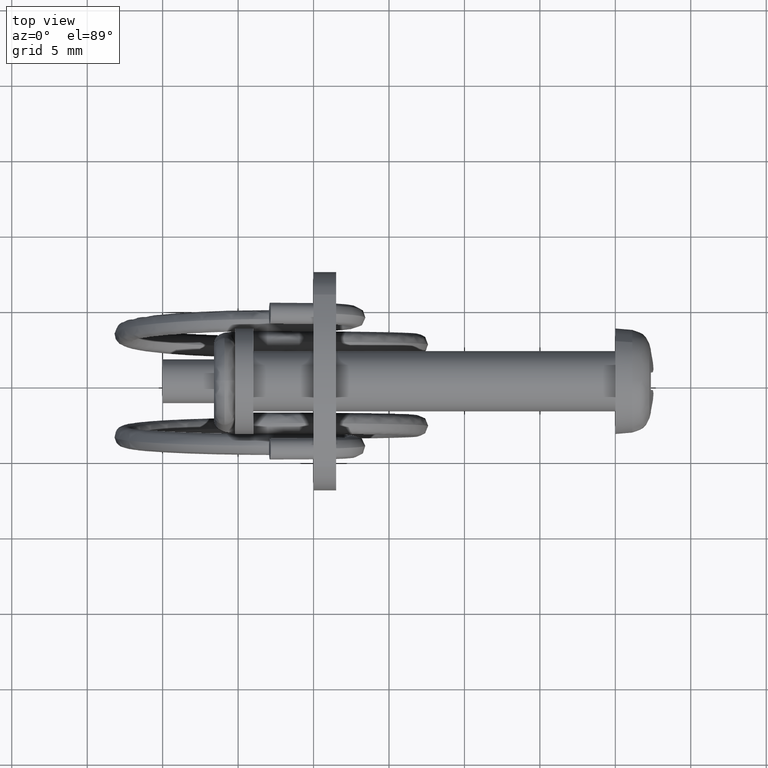
[diagram: clean part render]
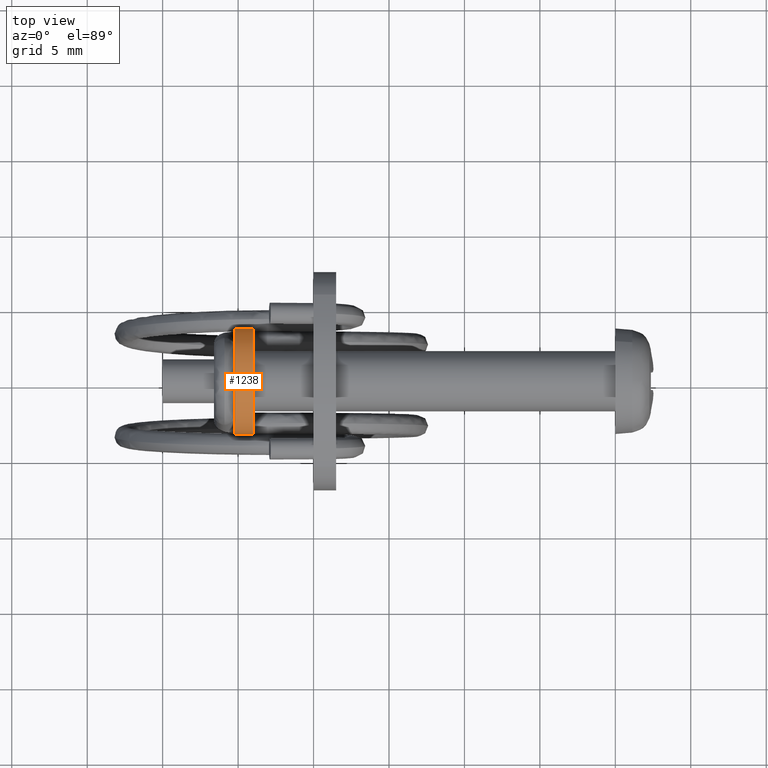
[diagram: same view with one face highlighted and labeled with its STEP entity id]
A machine part, top view. The second image highlights one B-rep face of the part: STEP entity #1238.
In plain terms, the highlighted face is a freeform B-spline surface patch.
Its self-contained STEP definition (entity closure, byte-faithful):
#1044=CARTESIAN_POINT('',(-25.199999999999999,0.0,3.500000000000057));
#1045=VERTEX_POINT('',#1044);
#1046=CARTESIAN_POINT('',(-25.199999999999999,3.493471794474410,0.213669888406786));
#1047=VERTEX_POINT('',#1046);
#1048=CARTESIAN_POINT('',(-25.199999999999999,0.0,3.500000000000057));
#1049=CARTESIAN_POINT('',(-25.200000000000006,3.292471234137140,3.500000000000057));
#1050=CARTESIAN_POINT('',(-25.199999999999999,3.493471794474410,0.213669888406786));
#1058=(BOUNDED_CURVE()B_SPLINE_CURVE(2,(#1048,#1049,#1050),.UNSPECIFIED.,.F.,.U.)B_SPLINE_CURVE_WITH_KNOTS((3,3),(0.0,0.239332962240253),.UNSPECIFIED.)CURVE()GEOMETRIC_REPRESENTATION_ITEM()RATIONAL_B_SPLINE_CURVE((1.0,0.719603993285175,0.976072041669525))REPRESENTATION_ITEM(''));
#1059=EDGE_CURVE('',#1045,#1047,#1058,.T.);
#1078=CARTESIAN_POINT('',(-25.199999999999999,-3.493471794474410,-0.213669888406672));
#1079=VERTEX_POINT('',#1078);
#1093=CARTESIAN_POINT('',(-25.199999999999999,-3.493471794474410,-0.213669888406673));
#1094=CARTESIAN_POINT('',(-25.200000000000003,-3.500000000000000,-0.106934671562418));
#1095=CARTESIAN_POINT('',(-25.199999999999999,-3.500000000000000,5.684342E-014));
#1096=CARTESIAN_POINT('',(-25.200000000000006,-3.500000000000000,3.500000000000056));
#1097=CARTESIAN_POINT('',(-25.199999999999999,0.0,3.500000000000057));
#1105=(BOUNDED_CURVE()B_SPLINE_CURVE(2,(#1093,#1094,#1095,#1096,#1097),.UNSPECIFIED.,.F.,.U.)B_SPLINE_CURVE_WITH_KNOTS((3,2,3),(0.739332962240253,0.750000000000000,1.0),.UNSPECIFIED.)CURVE()GEOMETRIC_REPRESENTATION_ITEM()RATIONAL_B_SPLINE_CURVE((0.976072041669525,0.987502787901372,1.0,0.707106781186547,1.0))REPRESENTATION_ITEM(''));
#1106=EDGE_CURVE('',#1079,#1045,#1105,.T.);
#1136=CARTESIAN_POINT('',(-23.999999999999751,3.493471794474410,0.213669888406786));
#1137=VERTEX_POINT('',#1136);
#1138=CARTESIAN_POINT('',(-23.999999999999751,3.493471794474410,0.213669888406786));
#1139=CARTESIAN_POINT('',(-25.199999999999999,3.493471794474410,0.213669888406786));
#1140=QUASI_UNIFORM_CURVE('',1,(#1138,#1139),.UNSPECIFIED.,.F.,.U.);
#1141=EDGE_CURVE('',#1137,#1047,#1140,.T.);
#1160=CARTESIAN_POINT('',(-23.999999999999751,-3.493471794474410,-0.213669888406672));
#1161=VERTEX_POINT('',#1160);
#1175=CARTESIAN_POINT('',(-23.999999999999751,-3.493471794474410,-0.213669888406672));
#1176=CARTESIAN_POINT('',(-25.199999999999999,-3.493471794474410,-0.213669888406672));
#1177=QUASI_UNIFORM_CURVE('',1,(#1175,#1176),.UNSPECIFIED.,.F.,.U.);
#1178=EDGE_CURVE('',#1161,#1079,#1177,.T.);
#1184=CARTESIAN_POINT('',(-23.969999999999740,-3.493471794476533,-0.213669888371943));
#1185=CARTESIAN_POINT('',(-23.969999999999750,-3.707141682848533,3.279801906104592));
#1186=CARTESIAN_POINT('',(-23.969999999999740,-0.213669888371999,3.493471794476590));
#1187=CARTESIAN_POINT('',(-23.969999999999750,3.279801906104533,3.707141682848591));
#1188=CARTESIAN_POINT('',(-23.969999999999740,3.493471794476533,0.213669888372056));
#1189=CARTESIAN_POINT('',(-25.230750000000011,-3.493471794476533,-0.213669888371943));
#1190=CARTESIAN_POINT('',(-25.230750000000004,-3.707141682848533,3.279801906104592));
#1191=CARTESIAN_POINT('',(-25.230750000000011,-0.213669888371999,3.493471794476590));
#1192=CARTESIAN_POINT('',(-25.230750000000004,3.279801906104533,3.707141682848591));
#1193=CARTESIAN_POINT('',(-25.230750000000011,3.493471794476533,0.213669888372056));
#1201=(BOUNDED_SURFACE()B_SPLINE_SURFACE(2,1,((#1184,#1189),(#1185,#1190),(#1186,#1191),(#1187,#1192),(#1188,#1193)),.UNSPECIFIED.,.F.,.F.,.U.)B_SPLINE_SURFACE_WITH_KNOTS((3,2,3),(2,2),(0.0,5.798989873223330,11.597979746446660),(0.0,1.0),.UNSPECIFIED.)GEOMETRIC_REPRESENTATION_ITEM()RATIONAL_B_SPLINE_SURFACE(((1.0,1.0),(0.707106781186548,0.707106781186548),(1.0,1.0),(0.707106781186548,0.707106781186548),(1.0,1.0)))REPRESENTATION_ITEM('')SURFACE());
#1202=ORIENTED_EDGE('',*,*,#1059,.F.);
#1203=ORIENTED_EDGE('',*,*,#1106,.F.);
#1204=ORIENTED_EDGE('',*,*,#1178,.F.);
#1205=CARTESIAN_POINT('',(-23.999999999999751,0.0,3.500000000000057));
#1206=VERTEX_POINT('',#1205);
#1207=CARTESIAN_POINT('',(-23.999999999999751,-3.493471794474410,-0.213669888406673));
#1208=CARTESIAN_POINT('',(-23.999999999999755,-3.500000000000000,-0.106934671562418));
#1209=CARTESIAN_POINT('',(-23.999999999999751,-3.500000000000000,5.684342E-014));
#1210=CARTESIAN_POINT('',(-23.999999999999758,-3.500000000000000,3.500000000000056));
#1211=CARTESIAN_POINT('',(-23.999999999999751,0.0,3.500000000000057));
#1219=(BOUNDED_CURVE()B_SPLINE_CURVE(2,(#1207,#1208,#1209,#1210,#1211),.UNSPECIFIED.,.F.,.U.)B_SPLINE_CURVE_WITH_KNOTS((3,2,3),(0.739332962240253,0.750000000000000,1.0),.UNSPECIFIED.)CURVE()GEOMETRIC_REPRESENTATION_ITEM()RATIONAL_B_SPLINE_CURVE((0.976072041669525,0.987502787901372,1.0,0.707106781186547,1.0))REPRESENTATION_ITEM(''));
#1220=EDGE_CURVE('',#1161,#1206,#1219,.T.);
#1221=ORIENTED_EDGE('',*,*,#1220,.T.);
#1222=CARTESIAN_POINT('',(-23.999999999999751,0.0,3.500000000000057));
#1223=CARTESIAN_POINT('',(-23.999999999999758,3.292471234137140,3.500000000000057));
#1224=CARTESIAN_POINT('',(-23.999999999999751,3.493471794474410,0.213669888406786));
#1232=(BOUNDED_CURVE()B_SPLINE_CURVE(2,(#1222,#1223,#1224),.UNSPECIFIED.,.F.,.U.)B_SPLINE_CURVE_WITH_KNOTS((3,3),(0.0,0.239332962240253),.UNSPECIFIED.)CURVE()GEOMETRIC_REPRESENTATION_ITEM()RATIONAL_B_SPLINE_CURVE((1.0,0.719603993285175,0.976072041669525))REPRESENTATION_ITEM(''));
#1233=EDGE_CURVE('',#1206,#1137,#1232,.T.);
#1234=ORIENTED_EDGE('',*,*,#1233,.T.);
#1235=ORIENTED_EDGE('',*,*,#1141,.T.);
#1236=EDGE_LOOP('',(#1202,#1203,#1204,#1221,#1234,#1235));
#1237=FACE_OUTER_BOUND('',#1236,.T.);
#1238=ADVANCED_FACE('',(#1237),#1201,.T.);